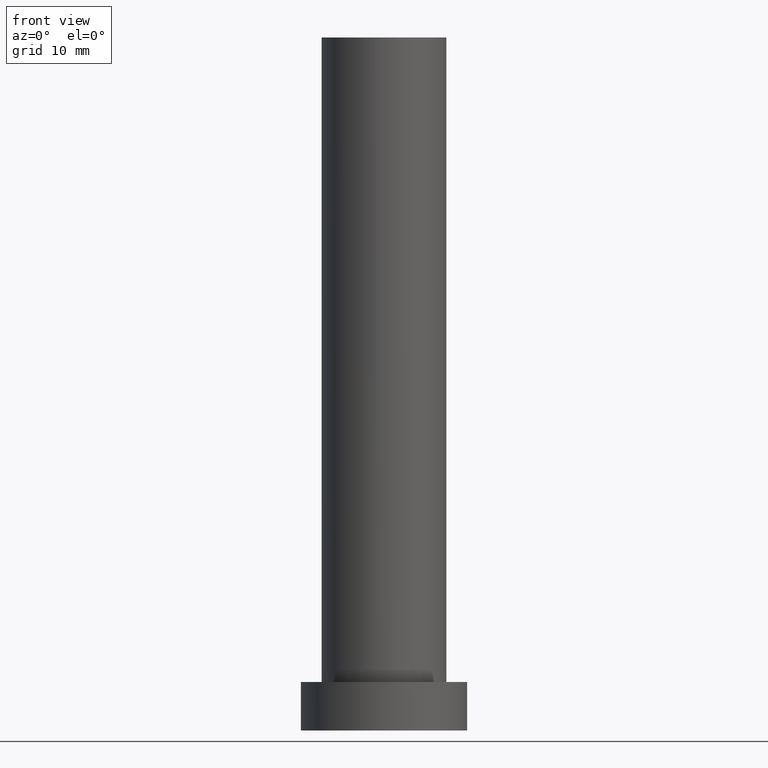
[diagram: clean part render]
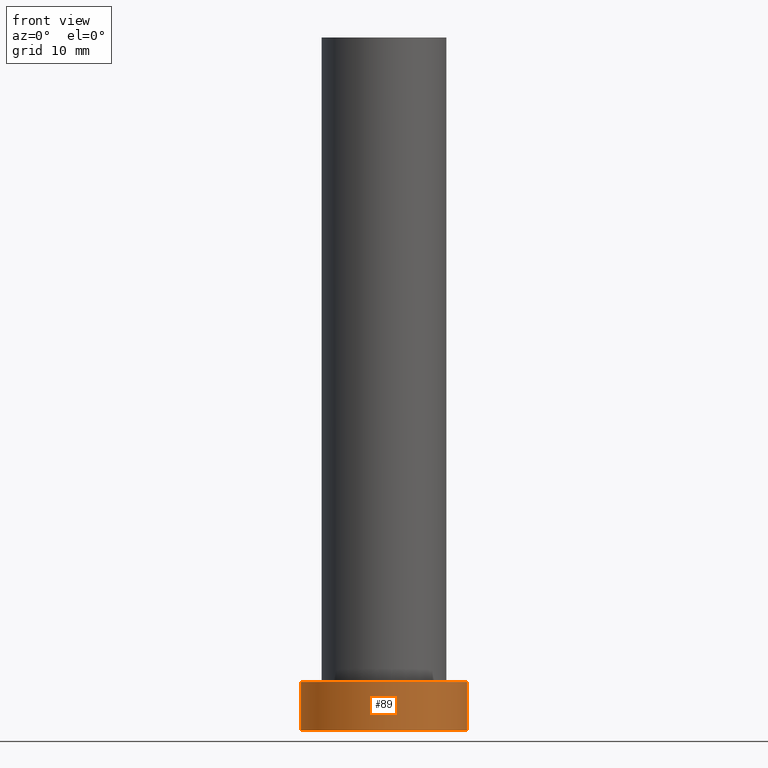
[diagram: same view with one face highlighted and labeled with its STEP entity id]
A machine part, front view. The second image highlights one B-rep face of the part: STEP entity #89.
In plain terms, the highlighted cylindrical surface (partial cylindrical patch) has radius 12 mm, axis along (-0, -0, -1).
Its self-contained STEP definition (entity closure, byte-faithful):
#6 = EDGE_CURVE ( 'NONE', #217, #155, #44, .T. ) ;
#10 = DIRECTION ( 'NONE',  ( -1.000000000000000000, 0.000000000000000000, 0.000000000000000000 ) ) ;
#20 = ORIENTED_EDGE ( 'NONE', *, *, #244, .T. ) ;
#23 = VERTEX_POINT ( 'NONE', #215 ) ;
#29 = CARTESIAN_POINT ( 'NONE',  ( -12.00000000000000178, 0.000000000000000000, 0.000000000000000000 ) ) ;
#44 = CIRCLE ( 'NONE', #199, 12.00000000000000178 ) ;
#53 = CARTESIAN_POINT ( 'NONE',  ( -12.00000000000000178, 0.000000000000000000, 7.000000000000000000 ) ) ;
#56 = DIRECTION ( 'NONE',  ( 1.000000000000000000, 0.000000000000000000, 0.000000000000000000 ) ) ;
#57 = VECTOR ( 'NONE', #208, 1000.000000000000000 ) ;
#63 = DIRECTION ( 'NONE',  ( 1.000000000000000000, 0.000000000000000000, 0.000000000000000000 ) ) ;
#68 = VECTOR ( 'NONE', #75, 1000.000000000000000 ) ;
#69 = DIRECTION ( 'NONE',  ( -0.000000000000000000, -0.000000000000000000, -1.000000000000000000 ) ) ;
#74 = ORIENTED_EDGE ( 'NONE', *, *, #6, .F. ) ;
#75 = DIRECTION ( 'NONE',  ( -0.000000000000000000, -0.000000000000000000, -1.000000000000000000 ) ) ;
#85 = VERTEX_POINT ( 'NONE', #29 ) ;
#89 = ADVANCED_FACE ( 'NONE', ( #222 ), #187, .T. ) ;
#103 = EDGE_LOOP ( 'NONE', ( #160, #74, #20, #254 ) ) ;
#104 = LINE ( 'NONE', #53, #68 ) ;
#115 = CIRCLE ( 'NONE', #255, 12.00000000000000178 ) ;
#119 = CARTESIAN_POINT ( 'NONE',  ( 0.000000000000000000, 0.000000000000000000, 7.000000000000000000 ) ) ;
#120 = DIRECTION ( 'NONE',  ( 0.000000000000000000, 0.000000000000000000, 1.000000000000000000 ) ) ;
#155 = VERTEX_POINT ( 'NONE', #165 ) ;
#160 = ORIENTED_EDGE ( 'NONE', *, *, #227, .F. ) ;
#165 = CARTESIAN_POINT ( 'NONE',  ( 12.00000000000000178, 1.469576158976824144E-15, 7.000000000000000000 ) ) ;
#169 = CARTESIAN_POINT ( 'NONE',  ( 12.00000000000000178, 1.469576158976824144E-15, 7.000000000000000000 ) ) ;
#177 = AXIS2_PLACEMENT_3D ( 'NONE', #243, #69, #10 ) ;
#184 = LINE ( 'NONE', #169, #57 ) ;
#187 = CYLINDRICAL_SURFACE ( 'NONE', #177, 12.00000000000000178 ) ;
#199 = AXIS2_PLACEMENT_3D ( 'NONE', #119, #200, #63 ) ;
#200 = DIRECTION ( 'NONE',  ( 0.000000000000000000, 0.000000000000000000, 1.000000000000000000 ) ) ;
#203 = CARTESIAN_POINT ( 'NONE',  ( -12.00000000000000178, 0.000000000000000000, 7.000000000000000000 ) ) ;
#208 = DIRECTION ( 'NONE',  ( -0.000000000000000000, -0.000000000000000000, -1.000000000000000000 ) ) ;
#210 = CARTESIAN_POINT ( 'NONE',  ( 0.000000000000000000, 0.000000000000000000, 0.000000000000000000 ) ) ;
#215 = CARTESIAN_POINT ( 'NONE',  ( 12.00000000000000178, 1.469576158976824144E-15, 0.000000000000000000 ) ) ;
#217 = VERTEX_POINT ( 'NONE', #203 ) ;
#222 = FACE_OUTER_BOUND ( 'NONE', #103, .T. ) ;
#227 = EDGE_CURVE ( 'NONE', #155, #23, #184, .T. ) ;
#229 = EDGE_CURVE ( 'NONE', #85, #23, #115, .T. ) ;
#243 = CARTESIAN_POINT ( 'NONE',  ( 0.000000000000000000, 0.000000000000000000, 7.000000000000000000 ) ) ;
#244 = EDGE_CURVE ( 'NONE', #217, #85, #104, .T. ) ;
#254 = ORIENTED_EDGE ( 'NONE', *, *, #229, .T. ) ;
#255 = AXIS2_PLACEMENT_3D ( 'NONE', #210, #120, #56 ) ;